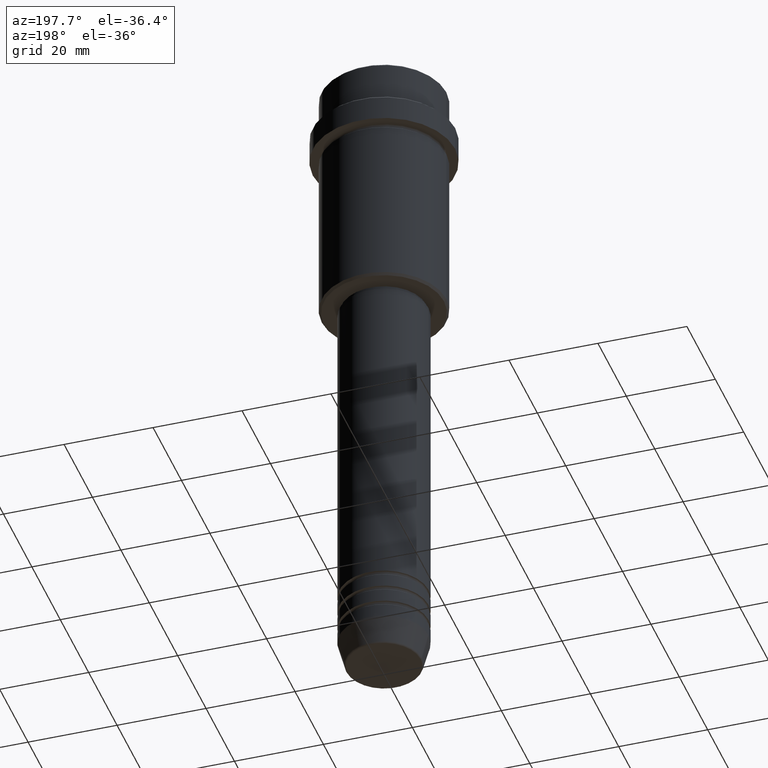
[diagram: clean part render]
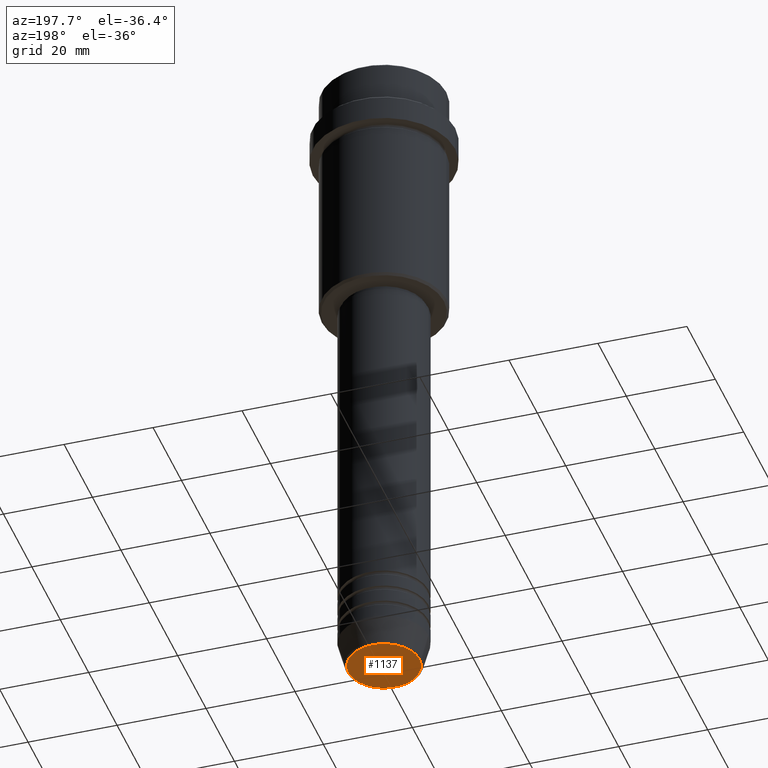
[diagram: same view with one face highlighted and labeled with its STEP entity id]
A machine part, auxiliary view. The second image highlights one B-rep face of the part: STEP entity #1137.
In plain terms, the highlighted planar face has unit normal (0, -0, 1).
Its self-contained STEP definition (entity closure, byte-faithful):
#224 = CIRCLE ( 'NONE', #1240, 8.008641351423783306 ) ;
#249 = AXIS2_PLACEMENT_3D ( 'NONE', #486, #617, #1384 ) ;
#292 = DIRECTION ( 'NONE',  ( 0.000000000000000000, 0.000000000000000000, -1.000000000000000000 ) ) ;
#294 = EDGE_CURVE ( 'NONE', #787, #897, #973, .T. ) ;
#297 = EDGE_CURVE ( 'NONE', #897, #787, #224, .T. ) ;
#353 = DIRECTION ( 'NONE',  ( 1.000000000000000000, 0.000000000000000000, 0.000000000000000000 ) ) ;
#486 = CARTESIAN_POINT ( 'NONE',  ( 0.000000000000000000, 0.000000000000000000, -150.0000000000000284 ) ) ;
#550 = PLANE ( 'NONE',  #732 ) ;
#617 = DIRECTION ( 'NONE',  ( 0.000000000000000000, 0.000000000000000000, -1.000000000000000000 ) ) ;
#686 = CARTESIAN_POINT ( 'NONE',  ( 0.000000000000000000, 0.000000000000000000, -150.0000000000000284 ) ) ;
#732 = AXIS2_PLACEMENT_3D ( 'NONE', #686, #1010, #353 ) ;
#787 = VERTEX_POINT ( 'NONE', #862 ) ;
#793 = FACE_OUTER_BOUND ( 'NONE', #1092, .T. ) ;
#862 = CARTESIAN_POINT ( 'NONE',  ( -8.008641351423783306, 1.010348648938493172E-15, -150.0000000000000284 ) ) ;
#897 = VERTEX_POINT ( 'NONE', #914 ) ;
#914 = CARTESIAN_POINT ( 'NONE',  ( 8.008641351423783306, 0.000000000000000000, -150.0000000000000284 ) ) ;
#973 = CIRCLE ( 'NONE', #249, 8.008641351423783306 ) ;
#1010 = DIRECTION ( 'NONE',  ( 0.000000000000000000, -0.000000000000000000, 1.000000000000000000 ) ) ;
#1063 = ORIENTED_EDGE ( 'NONE', *, *, #294, .T. ) ;
#1083 = DIRECTION ( 'NONE',  ( 1.000000000000000000, 0.000000000000000000, 0.000000000000000000 ) ) ;
#1092 = EDGE_LOOP ( 'NONE', ( #1359, #1063 ) ) ;
#1137 = ADVANCED_FACE ( 'NONE', ( #793 ), #550, .F. ) ;
#1184 = CARTESIAN_POINT ( 'NONE',  ( 0.000000000000000000, 0.000000000000000000, -150.0000000000000284 ) ) ;
#1240 = AXIS2_PLACEMENT_3D ( 'NONE', #1184, #292, #1083 ) ;
#1359 = ORIENTED_EDGE ( 'NONE', *, *, #297, .T. ) ;
#1384 = DIRECTION ( 'NONE',  ( 1.000000000000000000, 0.000000000000000000, 0.000000000000000000 ) ) ;